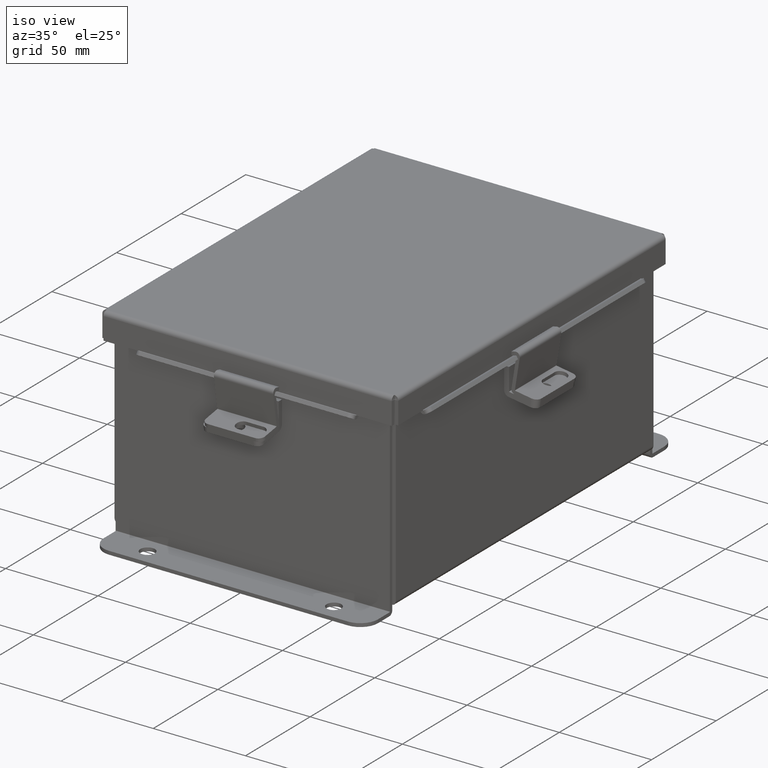
[diagram: clean part render]
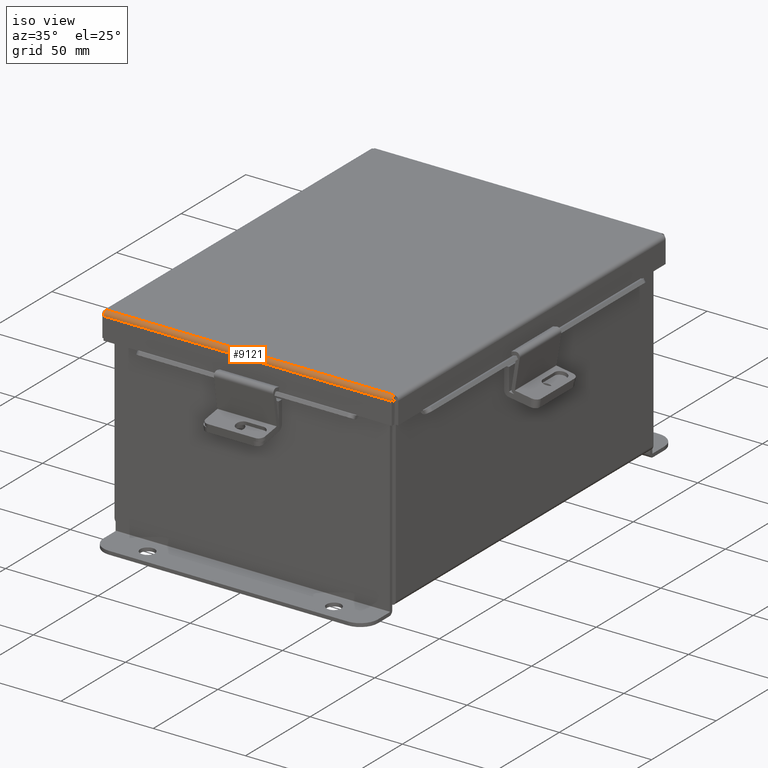
[diagram: same view with one face highlighted and labeled with its STEP entity id]
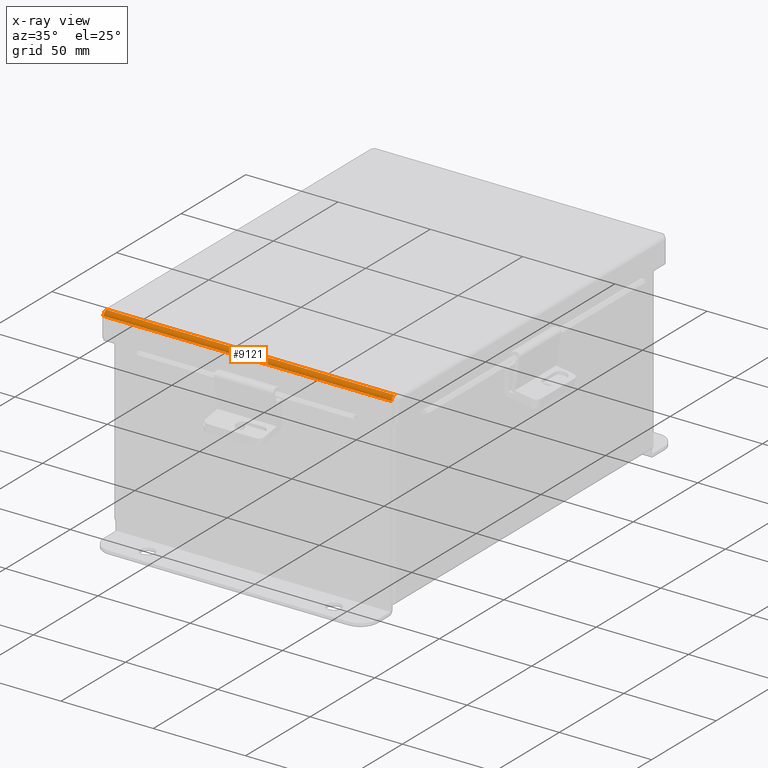
[diagram: x-ray of the same camera — body ghosted, the highlighted face saturated]
A machine part, iso view. The second image highlights one B-rep face of the part: STEP entity #9121.
The next image is the same camera in x-ray: the body ghosted, the highlighted face saturated — about 0% of this face is hidden behind the body in this view.
In plain terms, the highlighted cylindrical surface (edge-blend (fillet) strip) has radius 2.2276 mm, axis along (-1, 0, -0).
Its self-contained STEP definition (entity closure, byte-faithful):
#75 = CARTESIAN_POINT ( 'NONE',  ( 3.068550000000001400, -4.068549999999998300, -0.07469999999999994700 ) ) ;
#272 = B_SPLINE_CURVE_WITH_KNOTS ( 'NONE', 3,
 ( #7025, #6993, #6963, #6951, #6922, #6914, #6904, #6894, #6878, #6859 ),
 .UNSPECIFIED., .F., .F.,
 ( 4, 2, 2, 2, 4 ),
 ( 0.0000000000000000000, 0.2500000000000000000, 0.5000000000000000000, 0.7500000000000000000, 1.000000000000000000 ),
 .UNSPECIFIED. ) ;
#447 = ORIENTED_EDGE ( 'NONE', *, *, #3542, .F. ) ;
#1460 = LINE ( 'NONE', #3617, #9031 ) ;
#1972 = CARTESIAN_POINT ( 'NONE',  ( -3.074478932188133800, -4.156249999999998200, 0.01299999999999985900 ) ) ;
#2414 = DIRECTION ( 'NONE',  ( -1.000000000000000000, 3.639204975723964700E-032, 1.189815042988946700E-046 ) ) ;
#2417 = EDGE_CURVE ( 'NONE', #8055, #3234, #5849, .T. ) ;
#2526 = EDGE_CURVE ( 'NONE', #8724, #8626, #1460, .T. ) ;
#2668 = DIRECTION ( 'NONE',  ( 0.0000000000000000000, -1.000000000000000000, -3.358350761880586900E-015 ) ) ;
#2771 = FACE_OUTER_BOUND ( 'NONE', #4879, .T. ) ;
#3234 = VERTEX_POINT ( 'NONE', #1972 ) ;
#3542 = EDGE_CURVE ( 'NONE', #8626, #3234, #272, .T. ) ;
#3617 = CARTESIAN_POINT ( 'NONE',  ( 3.074478932188136100, -4.068549999999998300, -0.07469999999999994700 ) ) ;
#3759 = CARTESIAN_POINT ( 'NONE',  ( 3.074478932188136100, -4.156249999999998200, 0.01299999999999986400 ) ) ;
#4856 = DIRECTION ( 'NONE',  ( 1.000000000000000000, -0.0000000000000000000, -0.0000000000000000000 ) ) ;
#4879 = EDGE_LOOP ( 'NONE', ( #5105, #8324, #6713, #447 ) ) ;
#5105 = ORIENTED_EDGE ( 'NONE', *, *, #2526, .F. ) ;
#5232 = EDGE_CURVE ( 'NONE', #8055, #8724, #6443, .T. ) ;
#5849 = LINE ( 'NONE', #7989, #9580 ) ;
#6367 = AXIS2_PLACEMENT_3D ( 'NONE', #7114, #4856, #2668 ) ;
#6443 = B_SPLINE_CURVE_WITH_KNOTS ( 'NONE', 3,
 ( #8124, #8160, #8168, #8079, #8066, #8057, #8034, #7998, #7984, #7959 ),
 .UNSPECIFIED., .F., .F.,
 ( 4, 2, 2, 2, 4 ),
 ( 0.0000000000000000000, 0.2500000000000000000, 0.5000000000000000000, 0.7500000000000000000, 1.000000000000000000 ),
 .UNSPECIFIED. ) ;
#6444 = DIRECTION ( 'NONE',  ( -1.000000000000000000, 0.0000000000000000000, 0.0000000000000000000 ) ) ;
#6713 = ORIENTED_EDGE ( 'NONE', *, *, #2417, .T. ) ;
#6859 = CARTESIAN_POINT ( 'NONE',  ( -3.074478932188133800, -4.156249999999998200, 0.01299999999999985900 ) ) ;
#6878 = CARTESIAN_POINT ( 'NONE',  ( -3.073984854505790000, -4.156249999999999100, 0.001520096845007165400 ) ) ;
#6894 = CARTESIAN_POINT ( 'NONE',  ( -3.073490776823445200, -4.153967403743810600, -0.009955289458308985400 ) ) ;
#6904 = CARTESIAN_POINT ( 'NONE',  ( -3.072502621458755600, -4.145181066258667000, -0.03116738457852795100 ) ) ;
#6914 = CARTESIAN_POINT ( 'NONE',  ( -3.072008543776411300, -4.138680782078320200, -0.04089574734180008400 ) ) ;
#6922 = CARTESIAN_POINT ( 'NONE',  ( -3.071020388411722200, -4.122445747341799000, -0.05713078207832042500 ) ) ;
#6951 = CARTESIAN_POINT ( 'NONE',  ( -3.070526310729377400, -4.112717384578524500, -0.06363106625866839200 ) ) ;
#6963 = CARTESIAN_POINT ( 'NONE',  ( -3.069538155364688800, -4.091505289458308600, -0.07241740374381124000 ) ) ;
#6993 = CARTESIAN_POINT ( 'NONE',  ( -3.069044077682344400, -4.080029903154990500, -0.07469999999999994700 ) ) ;
#7025 = CARTESIAN_POINT ( 'NONE',  ( -3.068549999999998800, -4.068549999999999200, -0.07469999999999994700 ) ) ;
#7114 = CARTESIAN_POINT ( 'NONE',  ( 3.074478932188136100, -4.068549999999998300, 0.01300000000000015000 ) ) ;
#7959 = CARTESIAN_POINT ( 'NONE',  ( 3.068550000000001400, -4.068549999999998300, -0.07469999999999994700 ) ) ;
#7984 = CARTESIAN_POINT ( 'NONE',  ( 3.069044077682346200, -4.080029903154990500, -0.07469999999999994700 ) ) ;
#7989 = CARTESIAN_POINT ( 'NONE',  ( -3.156249999999997800, -4.156249999999998200, 0.01299999999999986400 ) ) ;
#7998 = CARTESIAN_POINT ( 'NONE',  ( 3.069538155364690100, -4.091505289458307700, -0.07241740374381125400 ) ) ;
#8034 = CARTESIAN_POINT ( 'NONE',  ( 3.070526310729379600, -4.112717384578526300, -0.06363106625866842000 ) ) ;
#8055 = VERTEX_POINT ( 'NONE', #3759 ) ;
#8057 = CARTESIAN_POINT ( 'NONE',  ( 3.071020388411724000, -4.122445747341799000, -0.05713078207832041800 ) ) ;
#8066 = CARTESIAN_POINT ( 'NONE',  ( 3.072008543776413500, -4.138680782078318500, -0.04089574734180007700 ) ) ;
#8079 = CARTESIAN_POINT ( 'NONE',  ( 3.072502621458757000, -4.145181066258665200, -0.03116738457852794700 ) ) ;
#8124 = CARTESIAN_POINT ( 'NONE',  ( 3.074478932188136100, -4.156249999999998200, 0.01299999999999986400 ) ) ;
#8160 = CARTESIAN_POINT ( 'NONE',  ( 3.073984854505790800, -4.156249999999998200, 0.001520096845007165000 ) ) ;
#8168 = CARTESIAN_POINT ( 'NONE',  ( 3.073490776823448300, -4.153967403743810600, -0.009955289458308987100 ) ) ;
#8324 = ORIENTED_EDGE ( 'NONE', *, *, #5232, .F. ) ;
#8471 = CYLINDRICAL_SURFACE ( 'NONE', #6367, 0.08770000000000026400 ) ;
#8626 = VERTEX_POINT ( 'NONE', #8855 ) ;
#8724 = VERTEX_POINT ( 'NONE', #75 ) ;
#8855 = CARTESIAN_POINT ( 'NONE',  ( -3.068549999999998800, -4.068549999999999200, -0.07469999999999994700 ) ) ;
#9031 = VECTOR ( 'NONE', #6444, 39.37007874015748100 ) ;
#9121 = ADVANCED_FACE ( 'NONE', ( #2771 ), #8471, .T. ) ;
#9580 = VECTOR ( 'NONE', #2414, 39.37007874015748100 ) ;